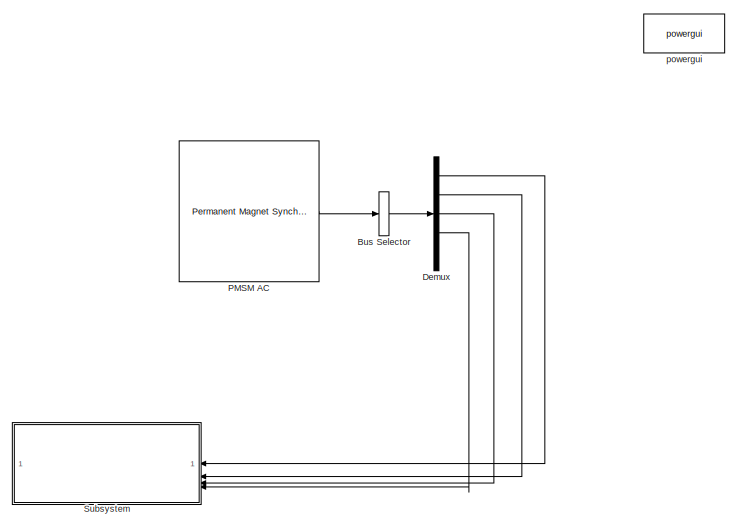
[diagram: root canvas - part 1/2, right side, full height]
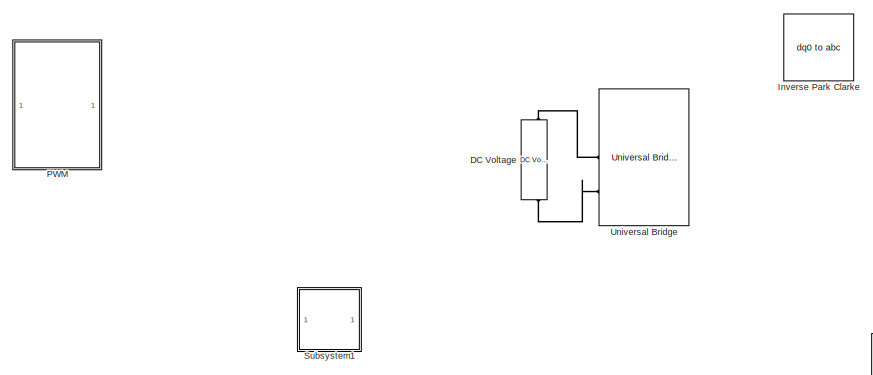
[diagram: root canvas - part 2/2, middle left region]
MODEL slx_06a3bbca5d24
KIND model
CONFIG AbsTol = auto
CONFIG EnableMultiTasking = off
CONFIG FixedStep = auto
CONFIG MaxStep = auto
CONFIG MinStep = auto
CONFIG RelTol = 1e-3
CONFIG SampleTimeConstraint = Unconstrained
CONFIG SolverName = VariableStepAuto
CONFIG StartTime = 0.0
CONFIG StopTime = 10.0
BLOCK [BusSelector] Bus Selector
  OutputAsBus = on
  OutputSignals = Stator current is_a (A),Stator current is_b (A),Stator current is_c (A),Rotor angle thetam (rad),Rotor speed wm (rad/s)
BLOCK [Reference] DC Voltage  REF=spsDCVoltageSourceLib/DC Voltage Source
  SourceBlock = spsDCVoltageSourceLib/DC Voltage Source
  SourceType = DC Voltage Source
BLOCK [Demux] Demux
  Outputs = 5
BLOCK [Reference] Inverse Park Clarke  REF=spsdq0toabcLib/dq0 to abc
  SourceBlock = spsdq0toabcLib/dq0 to abc
  SourceType = dq0 to abc Transformation
BLOCK [Reference] PMSM AC    REF=spsPermanentMagnetSynchronousMachineLib/Permanent Magnet
Synchronous Machine
  SourceBlock = spsPermanentMagnetSynchronousMachineLib/Permanent Magnet\nSynchronous Machine
  SourceType = Permanent Magnet Synchronous Machine
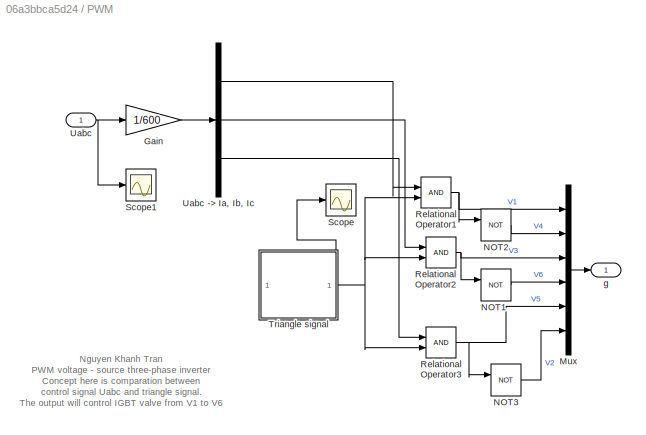
BLOCK [SubSystem] PWM 
BLOCK [Gain] PWM /Gain
  Gain = 1/600
BLOCK [Mux] PWM /Mux
  DisplayOption = bar
  Inputs = 6
BLOCK [Logic] PWM /NOT1
  AllPortsSameDT = off
  IconShape = distinctive
  Operator = NOT
  OutDataTypeStr = boolean
BLOCK [Logic] PWM /NOT2
  AllPortsSameDT = off
  IconShape = distinctive
  Operator = NOT
  OutDataTypeStr = boolean
BLOCK [Logic] PWM /NOT3
  AllPortsSameDT = off
  IconShape = distinctive
  Operator = NOT
  OutDataTypeStr = boolean
BLOCK [RelationalOperator] PWM /Relational Operator1
  InputSameDT = off
  OutDataTypeStr = boolean
  RndMeth = Simplest
BLOCK [RelationalOperator] PWM /Relational Operator2
  InputSameDT = off
  OutDataTypeStr = boolean
  RndMeth = Simplest
BLOCK [RelationalOperator] PWM /Relational Operator3
  InputSameDT = off
  OutDataTypeStr = boolean
  RndMeth = Simplest
BLOCK [Scope] PWM /Scope
  Floating = off
  NumInputPorts = 1
  ScopeSpecificationString = Simulink.scopes.TimeScopeBlockCfg('CurrentConfiguration', extmgr.ConfigurationSet(extmgr.Configuration('Core','General UI',true),extmgr.Configuration('Core','Source UI',true),extmgr.Configuration('Sources','WiredSimulink',true,'DataLoggingVariableName','ScopeData1'),extmgr.Configuration('Visuals','Time Domain',true,'SerializedDisplays',{struct('MinYLimReal','-1.25','MaxYLimReal','1.16991','YLabelR...<+1404ch>
BLOCK [Scope] PWM /Scope1
  Floating = off
  NumInputPorts = 1
  ScopeSpecificationString = Simulink.scopes.TimeScopeBlockCfg('CurrentConfiguration', extmgr.ConfigurationSet(extmgr.Configuration('Core','General UI',true),extmgr.Configuration('Core','Source UI',true),extmgr.Configuration('Sources','WiredSimulink',true,'DataLoggingVariableName','ScopeData3'),extmgr.Configuration('Visuals','Time Domain',true,'SerializedDisplays',{struct('MinYLimReal','-571.76854','MaxYLimReal','566.36574','...<+1443ch>
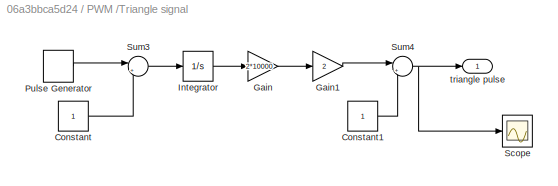
BLOCK [SubSystem] PWM /Triangle signal 
BLOCK [Constant] PWM /Triangle signal /Constant
BLOCK [Constant] PWM /Triangle signal /Constant1
BLOCK [Gain] PWM /Triangle signal /Gain
  Gain = 2*10000
BLOCK [Gain] PWM /Triangle signal /Gain1
  Gain = 2
BLOCK [Integrator] PWM /Triangle signal /Integrator
BLOCK [DiscretePulseGenerator] PWM /Triangle signal /Pulse Generator
  Amplitude = 2
  Period = 1/10000
  PulseType = Time based
  PulseWidth = 50
BLOCK [Scope] PWM /Triangle signal /Scope
  Floating = off
  NumInputPorts = 1
  ScopeSpecificationString = Simulink.scopes.TimeScopeBlockCfg('CurrentConfiguration', extmgr.ConfigurationSet(extmgr.Configuration('Core','General UI',true),extmgr.Configuration('Core','Source UI',true),extmgr.Configuration('Sources','WiredSimulink',true,'DataLoggingVariableName','ScopeData2'),extmgr.Configuration('Visuals','Time Domain',true,'SerializedDisplays',{struct('MinYLimReal','-1.25','MaxYLimReal','1.25','YLabelReal...<+1420ch>
BLOCK [Sum] PWM /Triangle signal /Sum3
  Inputs = |+-
BLOCK [Sum] PWM /Triangle signal /Sum4
  Inputs = |+-
BLOCK [Outport] PWM /Triangle signal /triangle pulse
BLOCK [Inport] PWM /Uabc
BLOCK [Demux] PWM /Uabc -> Ia, Ib, Ic 
  Outputs = 3
BLOCK [Outport] PWM /g
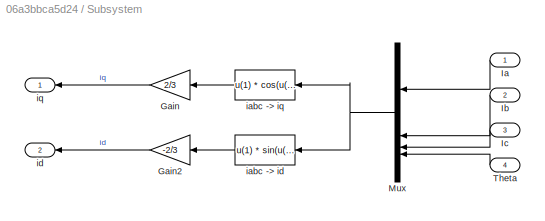
BLOCK [SubSystem] Subsystem
  NameLocation = top
BLOCK [Gain] Subsystem/Gain
  Gain = 2/3
  NameLocation = top
BLOCK [Gain] Subsystem/Gain2
  Gain = -2/3
  NameLocation = top
BLOCK [Inport] Subsystem/Ia
BLOCK [Inport] Subsystem/Ib
  Port = 2
BLOCK [Inport] Subsystem/Ic
  Port = 3
BLOCK [Mux] Subsystem/Mux
  DisplayOption = bar
  NameLocation = top
BLOCK [Inport] Subsystem/Theta
  Port = 4
BLOCK [Fcn] Subsystem/iabc -> id
  Expr = u(1) * sin(u(4)) + u(2) *sin(u(4) - 2*pi/3) + u(3)*sin(u(4)+2*pi/3)
BLOCK [Fcn] Subsystem/iabc -> iq
  Expr = u(1) * cos(u(4)) + u(2) *cos(u(4) - 2*pi/3) + u(3)*cos(u(4)+2*pi/3)
BLOCK [Outport] Subsystem/id
  NameLocation = top
  Port = 2
BLOCK [Outport] Subsystem/iq
  NameLocation = top
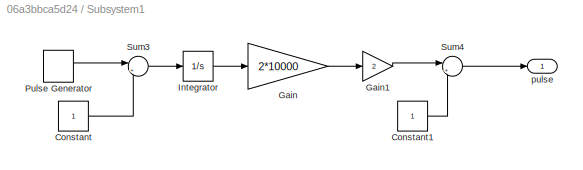
BLOCK [SubSystem] Subsystem1
BLOCK [Constant] Subsystem1/Constant
BLOCK [Constant] Subsystem1/Constant1
BLOCK [Gain] Subsystem1/Gain
  Gain = 2*10000
BLOCK [Gain] Subsystem1/Gain1
  Gain = 2
BLOCK [Integrator] Subsystem1/Integrator
BLOCK [DiscretePulseGenerator] Subsystem1/Pulse Generator
  Amplitude = 2
  Period = 1/10000
  PulseType = Time based
  PulseWidth = 50
BLOCK [Sum] Subsystem1/Sum3
  Inputs = |+-
BLOCK [Sum] Subsystem1/Sum4
  Inputs = |+-
BLOCK [Outport] Subsystem1/pulse
BLOCK [Reference] Universal Bridge  REF=spsUniversalBridgeLib/Universal Bridge
  SourceBlock = spsUniversalBridgeLib/Universal Bridge
  SourceType = Universal Bridge
BLOCK [Reference] powergui  REF=spspowerguiLib/powergui
  LibrarySourceBlock = sps_lib/powergui
  Priority = 1
  SourceBlock = spspowerguiLib/powergui
  SourceType = PSB option menu block
ANNOTATION PWM : Nguyen Khanh Tran PWM voltage - source three-phase inverter Concept here is comparation between control signal Uabc and triangle signal. The output will control IGBT valve from V1 to V6
LINE Bus Selector:1 -> Demux:1
LINE Demux:1 -> Subsystem:1
LINE Demux:2 -> Subsystem:2
LINE Demux:3 -> Subsystem:3
LINE Demux:4 -> Subsystem:4
LINE PMSM AC  :1 -> Bus Selector:1
LINE PWM /Gain:1 -> PWM /Uabc -> Ia, Ib, Ic :1
LINE PWM /Mux:1 -> PWM /g:1
LINE PWM /NOT1:1 -> PWM /Mux:4
LINE PWM /NOT2:1 -> PWM /Mux:2
LINE PWM /NOT3:1 -> PWM /Mux:6
NET PWM /Relational Operator1:1 -> PWM /Mux:1, PWM /NOT2:1
NET PWM /Relational Operator2:1 -> PWM /Mux:3, PWM /NOT1:1
NET PWM /Relational Operator3:1 -> PWM /Mux:5, PWM /NOT3:1
LINE PWM /Triangle signal /Constant1:1 -> PWM /Triangle signal /Sum4:2
LINE PWM /Triangle signal /Constant:1 -> PWM /Triangle signal /Sum3:2
LINE PWM /Triangle signal /Gain1:1 -> PWM /Triangle signal /Sum4:1
LINE PWM /Triangle signal /Gain:1 -> PWM /Triangle signal /Gain1:1
LINE PWM /Triangle signal /Integrator:1 -> PWM /Triangle signal /Gain:1
LINE PWM /Triangle signal /Pulse Generator:1 -> PWM /Triangle signal /Sum3:1
LINE PWM /Triangle signal /Sum3:1 -> PWM /Triangle signal /Integrator:1
NET PWM /Triangle signal /Sum4:1 -> PWM /Triangle signal /Scope:1, PWM /Triangle signal /triangle pulse:1
NET PWM /Triangle signal :1 -> PWM /Relational Operator1:2, PWM /Relational Operator2:2, PWM /Relational Operator3:2, PWM /Scope:1
LINE PWM /Uabc -> Ia, Ib, Ic :1 -> PWM /Relational Operator1:1
LINE PWM /Uabc -> Ia, Ib, Ic :2 -> PWM /Relational Operator2:1
LINE PWM /Uabc -> Ia, Ib, Ic :3 -> PWM /Relational Operator3:1
NET PWM /Uabc:1 -> PWM /Gain:1, PWM /Scope1:1
LINE Subsystem/Gain2:1 -> Subsystem/id:1
LINE Subsystem/Gain:1 -> Subsystem/iq:1
LINE Subsystem/Ia:1 -> Subsystem/Mux:1
LINE Subsystem/Ib:1 -> Subsystem/Mux:2
LINE Subsystem/Ic:1 -> Subsystem/Mux:3
NET Subsystem/Mux:1 -> Subsystem/iabc -> id:1, Subsystem/iabc -> iq:1
LINE Subsystem/Theta:1 -> Subsystem/Mux:4
LINE Subsystem/iabc -> id:1 -> Subsystem/Gain2:1
LINE Subsystem/iabc -> iq:1 -> Subsystem/Gain:1
LINE Subsystem1/Constant1:1 -> Subsystem1/Sum4:2
LINE Subsystem1/Constant:1 -> Subsystem1/Sum3:2
LINE Subsystem1/Gain1:1 -> Subsystem1/Sum4:1
LINE Subsystem1/Gain:1 -> Subsystem1/Gain1:1
LINE Subsystem1/Integrator:1 -> Subsystem1/Gain:1
LINE Subsystem1/Pulse Generator:1 -> Subsystem1/Sum3:1
LINE Subsystem1/Sum3:1 -> Subsystem1/Integrator:1
LINE Subsystem1/Sum4:1 -> Subsystem1/pulse:1
PLINE DC Voltage:LConn1 -- Universal Bridge:RConn2
PLINE DC Voltage:RConn1 -- Universal Bridge:RConn1
note: NET lines group one-source signal fan-out (src -> all destinations, sorted); 1:1 wires keep LINE
